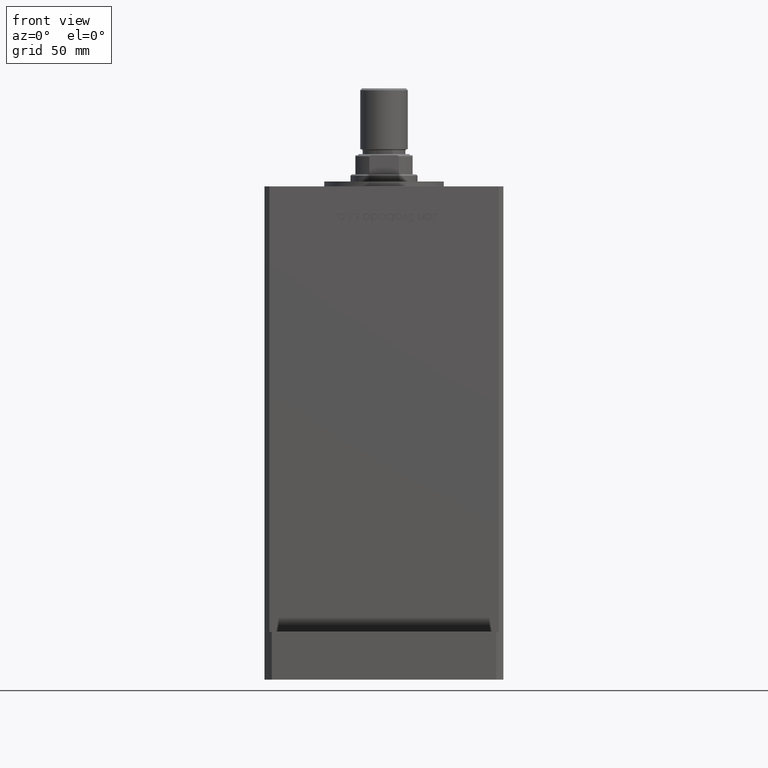
[diagram: clean part render]
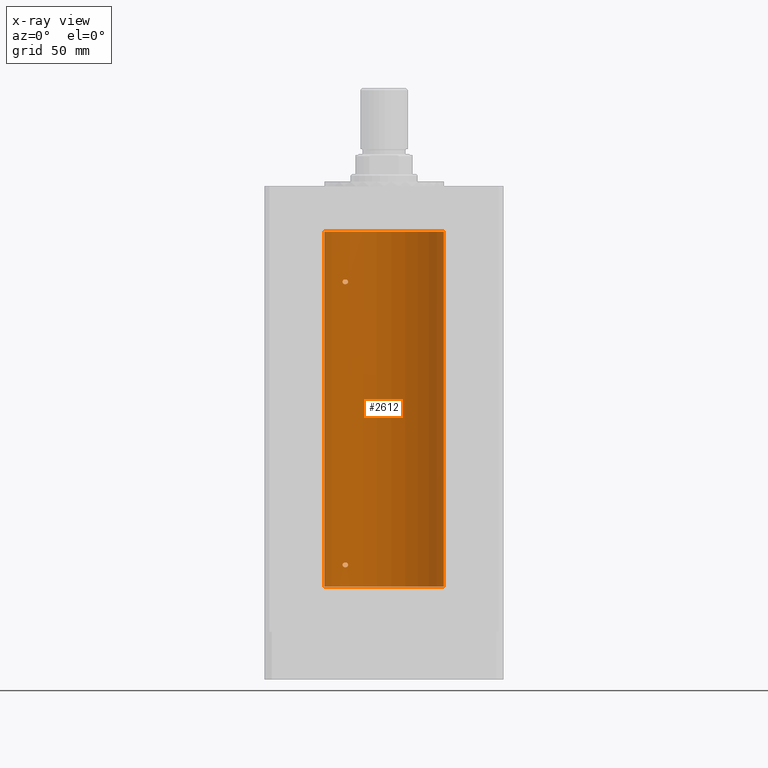
[diagram: x-ray — body ghosted, one internal face saturated and labeled with its STEP entity id]
A machine part, front view, then the same camera in x-ray: the body is ghosted and one INTERNAL B-rep face — a face not visible from any outside direction — is saturated and labeled: STEP entity #2612.
In plain terms, the highlighted cylindrical surface (partial cylindrical patch) has radius 25 mm, axis along (-0, -0, -1).
Its self-contained STEP definition (entity closure, byte-faithful):
#77 = CARTESIAN_POINT ( 'NONE',  ( -17.05007833789893112, 18.28384926940286093, 9.701373999012139038 ) ) ;
#343 = CARTESIAN_POINT ( 'NONE',  ( -15.34624284195506583, 19.73614442075939479, 9.687618531851304837 ) ) ;
#455 = CARTESIAN_POINT ( 'NONE',  ( -15.58164749401206528, 19.55082150006400354, 126.6566780726851533 ) ) ;
#612 = CARTESIAN_POINT ( 'NONE',  ( -15.00000000000018829, 20.00000000000001776, 9.084038803624167713 ) ) ;
#718 = CARTESIAN_POINT ( 'NONE',  ( -17.15234217094416280, 18.18812579706687416, 126.8965730437750778 ) ) ;
#986 = CARTESIAN_POINT ( 'NONE',  ( -15.23538646979301703, 19.82157806413529855, 126.9119998952827331 ) ) ;
#1133 = VERTEX_POINT ( 'NONE', #40102 ) ;
#1250 = CARTESIAN_POINT ( 'NONE',  ( -17.34935157289747565, 18.00000000000001421, 127.3289983604258282 ) ) ;
#2176 = CARTESIAN_POINT ( 'NONE',  ( -15.34666241858319680, 19.73581294411415143, 8.312122460537588964 ) ) ;
#2447 = CARTESIAN_POINT ( 'NONE',  ( -17.34935157289746854, 18.00000000000001066, 9.000000000000000000 ) ) ;
#2503 = EDGE_CURVE ( 'NONE', #25512, #37214, #52134, .T. ) ;
#2612 = ADVANCED_FACE ( 'NONE', ( #53629, #8176, #24877 ), #41582, .F. ) ;
#2718 = CARTESIAN_POINT ( 'NONE',  ( -15.00000000000018829, 20.00000000000002487, 8.915947458602436981 ) ) ;
#3735 = VERTEX_POINT ( 'NONE', #11087 ) ;
#3752 = CARTESIAN_POINT ( 'NONE',  ( -17.19010376497221060, 18.15221652163110377, 128.0356701235680248 ) ) ;
#3893 = EDGE_CURVE ( 'NONE', #18986, #3735, #52445, .T. ) ;
#4016 = CARTESIAN_POINT ( 'NONE',  ( -15.00000000000020250, 20.00000000000001066, 127.5840388036241535 ) ) ;
#4052 = CARTESIAN_POINT ( 'NONE',  ( 0.000000000000000000, 0.000000000000000000, 148.5000000000000000 ) ) ;
#4163 = CARTESIAN_POINT ( 'NONE',  ( -15.95796937689561013, 19.24499537862566712, 9.975773099652194276 ) ) ;
#4531 = CARTESIAN_POINT ( 'NONE',  ( -16.34293146994562207, 18.91921593628401155, 126.4973425906726590 ) ) ;
#4970 = CARTESIAN_POINT ( 'NONE',  ( -15.01476641895661679, 19.98894406010708380, 9.168794563401341691 ) ) ;
#5923 = CARTESIAN_POINT ( 'NONE',  ( -17.34935157289746854, 18.00000000000001066, 9.000000000000000000 ) ) ;
#6828 = CARTESIAN_POINT ( 'NONE',  ( -17.34935157289747210, 18.00000000000001421, 8.828998360425805103 ) ) ;
#7874 = CARTESIAN_POINT ( 'NONE',  ( -15.06763582406798285, 19.94912143246364877, 127.8250699387717191 ) ) ;
#8176 = FACE_BOUND ( 'NONE', #34460, .T. ) ;
#8670 = CARTESIAN_POINT ( 'NONE',  ( -17.05249165747629903, 18.28208333366427496, 126.7922192200365288 ) ) ;
#8821 = CARTESIAN_POINT ( 'NONE',  ( -14.99999999999999112, 20.00000000000001066, 9.000000000000000000 ) ) ;
#9577 = CARTESIAN_POINT ( 'NONE',  ( -25.00000000000000000, 0.000000000000000000, 148.5000000000000000 ) ) ;
#9617 = AXIS2_PLACEMENT_3D ( 'NONE', #47186, #13225, #9676 ) ;
#9676 = DIRECTION ( 'NONE',  ( 1.000000000000000000, 0.000000000000000000, 0.000000000000000000 ) ) ;
#10105 = ORIENTED_EDGE ( 'NONE', *, *, #26871, .F. ) ;
#10404 = CARTESIAN_POINT ( 'NONE',  ( -16.46844752485334240, 18.81003400474346776, 8.011544319038943485 ) ) ;
#10940 = CARTESIAN_POINT ( 'NONE',  ( -15.01482636753733502, 19.98889854010116096, 8.831202661007701238 ) ) ;
#11087 = CARTESIAN_POINT ( 'NONE',  ( -25.00000000000000000, 0.000000000000000000, 0.000000000000000000 ) ) ;
#11445 = CARTESIAN_POINT ( 'NONE',  ( -15.34624284195506050, 19.73614442075939834, 128.1876185318513137 ) ) ;
#12179 = AXIS2_PLACEMENT_3D ( 'NONE', #4052, #29255, #25150 ) ;
#13040 = CARTESIAN_POINT ( 'NONE',  ( -15.34666241858321989, 19.73581294411413722, 126.8121224605376085 ) ) ;
#13195 = CARTESIAN_POINT ( 'NONE',  ( -16.08745393861402917, 19.13692152169249994, 9.996501509986932987 ) ) ;
#13225 = DIRECTION ( 'NONE',  ( -0.000000000000000000, 0.000000000000000000, 1.000000000000000000 ) ) ;
#13301 = CARTESIAN_POINT ( 'NONE',  ( -15.10490010356608259, 19.92096840819818482, 127.1037666713225036 ) ) ;
#13576 = CARTESIAN_POINT ( 'NONE',  ( -17.30269557861148400, 18.04515136187495727, 127.1660420817559185 ) ) ;
#13742 = CARTESIAN_POINT ( 'NONE',  ( -16.99843849356148695, 18.33190197607054372, 9.746833514575657276 ) ) ;
#13845 = CARTESIAN_POINT ( 'NONE',  ( -15.70664578139657408, 19.45064696206087618, 126.6005795994920788 ) ) ;
#14172 = VERTEX_POINT ( 'NONE', #41447 ) ;
#14625 = ORIENTED_EDGE ( 'NONE', *, *, #29635, .T. ) ;
#15297 = CARTESIAN_POINT ( 'NONE',  ( -14.99999999999999112, 20.00000000000001066, 9.000000000000000000 ) ) ;
#15302 = CARTESIAN_POINT ( 'NONE',  ( -15.23538646979299038, 19.82157806413531631, 8.411999895282743722 ) ) ;
#15495 = EDGE_CURVE ( 'NONE', #29649, #3735, #48476, .T. ) ;
#15811 = CARTESIAN_POINT ( 'NONE',  ( -17.05007833789892757, 18.28384926940287869, 128.2013739990121906 ) ) ;
#15824 = ORIENTED_EDGE ( 'NONE', *, *, #23783, .F. ) ;
#16791 = LINE ( 'NONE', #20904, #41280 ) ;
#16831 = ORIENTED_EDGE ( 'NONE', *, *, #35658, .F. ) ;
#17037 = CARTESIAN_POINT ( 'NONE',  ( -17.30163983552689899, 18.04615713653367592, 9.336007472727789747 ) ) ;
#17305 = CARTESIAN_POINT ( 'NONE',  ( -15.23594348686699895, 19.82115246225716376, 9.588721932685826843 ) ) ;
#17416 = CARTESIAN_POINT ( 'NONE',  ( -15.01482636753733857, 19.98889854010115386, 127.3312026610077510 ) ) ;
#18986 = VERTEX_POINT ( 'NONE', #49377 ) ;
#19151 = CARTESIAN_POINT ( 'NONE',  ( -14.99999999999999112, 20.00000000000001066, 9.000000000000000000 ) ) ;
#19687 = CARTESIAN_POINT ( 'NONE',  ( -17.05249165747629547, 18.28208333366428207, 8.292219220036512795 ) ) ;
#20189 = CARTESIAN_POINT ( 'NONE',  ( -15.70535969280552990, 19.45169171760802485, 128.3989607721124742 ) ) ;
#20502 = VECTOR ( 'NONE', #47941, 1000.000000000000000 ) ;
#20741 = CARTESIAN_POINT ( 'NONE',  ( -15.01476641895662745, 19.98894406010706959, 127.6687945634013062 ) ) ;
#20896 = ORIENTED_EDGE ( 'NONE', *, *, #3893, .F. ) ;
#20904 = CARTESIAN_POINT ( 'NONE',  ( 25.00000000000000000, 3.061616997868383043E-15, 148.5000000000000000 ) ) ;
#21621 = DIRECTION ( 'NONE',  ( -0.000000000000000000, 0.000000000000000000, 1.000000000000000000 ) ) ;
#21686 = CARTESIAN_POINT ( 'NONE',  ( -17.34935157289747210, 18.00000000000001421, 9.170973690606336604 ) ) ;
#22068 = CARTESIAN_POINT ( 'NONE',  ( -15.06722189748649754, 19.94943357555938235, 127.1759803248788643 ) ) ;
#22341 = CARTESIAN_POINT ( 'NONE',  ( -16.08757264251640251, 19.13682698743027188, 126.5034427658481775 ) ) ;
#22726 = CARTESIAN_POINT ( 'NONE',  ( -16.71492528194912808, 18.59135325782692760, 8.080141558342090136 ) ) ;
#22999 = CARTESIAN_POINT ( 'NONE',  ( -17.30269557861148044, 18.04515136187495727, 8.666042081755902515 ) ) ;
#23544 = CARTESIAN_POINT ( 'NONE',  ( -17.15234217094416636, 18.18812579706687771, 8.396573043775076073 ) ) ;
#23783 = EDGE_CURVE ( 'NONE', #1133, #43336, #30539, .T. ) ;
#24877 = FACE_BOUND ( 'NONE', #45117, .T. ) ;
#25150 = DIRECTION ( 'NONE',  ( -1.000000000000000000, 0.000000000000000000, 0.000000000000000000 ) ) ;
#25305 = ORIENTED_EDGE ( 'NONE', *, *, #2503, .F. ) ;
#25512 = VERTEX_POINT ( 'NONE', #5923 ) ;
#25527 = CARTESIAN_POINT ( 'NONE',  ( -16.46913072925703148, 18.81168496547890712, 10.00577755881140618 ) ) ;
#25647 = ORIENTED_EDGE ( 'NONE', *, *, #43113, .F. ) ;
#26871 = EDGE_CURVE ( 'NONE', #14172, #18986, #16791, .T. ) ;
#27364 = AXIS2_PLACEMENT_3D ( 'NONE', #34212, #21621, #37775 ) ;
#28420 = CARTESIAN_POINT ( 'NONE',  ( -16.72476285461318923, 18.58415905903082788, 128.4449447607957495 ) ) ;
#28694 = CARTESIAN_POINT ( 'NONE',  ( -15.23594348686699007, 19.82115246225715310, 128.0887219326858428 ) ) ;
#29218 = CARTESIAN_POINT ( 'NONE',  ( -15.10490800566735814, 19.92096305044240268, 127.8962931740442173 ) ) ;
#29255 = DIRECTION ( 'NONE',  ( -0.000000000000000000, -0.000000000000000000, -1.000000000000000000 ) ) ;
#29481 = B_SPLINE_CURVE_WITH_KNOTS ( 'NONE', 3,
 ( #51366, #1250, #13576, #718, #8670, #42598, #50551, #30566, #4531, #22341, #38758, #13845, #455, #13040, #986, #13301, #22068, #17416, #34377, #50285 ),
 .UNSPECIFIED., .F., .F.,
 ( 4, 2, 2, 2, 2, 2, 2, 2, 2, 4 ),
 ( 0.000000000000000000, 0.0005040871078733106126, 0.001008174215746621225, 0.001512261323619931838, 0.002016348431493242450, 0.002520435539366552846, 0.003024522647239863676, 0.003528609755113174505, 0.003780653309049860928, 0.004032696862986547351 ),
 .UNSPECIFIED. ) ;
#29635 = EDGE_CURVE ( 'NONE', #14172, #29649, #52724, .T. ) ;
#29649 = VERTEX_POINT ( 'NONE', #9577 ) ;
#29659 = DIRECTION ( 'NONE',  ( -0.000000000000000000, -0.000000000000000000, -1.000000000000000000 ) ) ;
#30456 = CARTESIAN_POINT ( 'NONE',  ( -15.58230678163760530, 19.55030131031898577, 9.843739486702938635 ) ) ;
#30539 = B_SPLINE_CURVE_WITH_KNOTS ( 'NONE', 3,
 ( #50026, #4016, #20741, #7874, #29218, #28694, #11445, #54141, #20189, #36890, #36630, #53331, #28420, #41818, #15811, #37162, #3752, #32524, #53595, #49766 ),
 .UNSPECIFIED., .F., .F.,
 ( 4, 2, 2, 2, 2, 2, 2, 2, 2, 4 ),
 ( 0.004032696862986547351, 0.004284699222246883543, 0.004536701581507219735, 0.005040706300027958907, 0.005544711018548698946, 0.006048715737069438117, 0.007056725174110931205, 0.007308727533371293418, 0.007560729892631655631, 0.008064734611152384394 ),
 .UNSPECIFIED. ) ;
#30566 = CARTESIAN_POINT ( 'NONE',  ( -16.46844752485335661, 18.81003400474345710, 126.5115443190389328 ) ) ;
#31371 = ORIENTED_EDGE ( 'NONE', *, *, #15495, .T. ) ;
#32524 = CARTESIAN_POINT ( 'NONE',  ( -17.30163983552689189, 18.04615713653366882, 127.8360074727278004 ) ) ;
#32981 = CARTESIAN_POINT ( 'NONE',  ( -17.34935157289746854, 18.00000000000000711, 127.5000000000000000 ) ) ;
#34006 = CARTESIAN_POINT ( 'NONE',  ( -15.06763582406798463, 19.94912143246364522, 9.325069938771754607 ) ) ;
#34212 = CARTESIAN_POINT ( 'NONE',  ( 0.000000000000000000, 0.000000000000000000, 148.5000000000000000 ) ) ;
#34377 = CARTESIAN_POINT ( 'NONE',  ( -15.00000000000020250, 20.00000000000001421, 127.4159474586024317 ) ) ;
#34460 = EDGE_LOOP ( 'NONE', ( #25305, #16831 ) ) ;
#34543 = CARTESIAN_POINT ( 'NONE',  ( -17.19010376497221060, 18.15221652163110377, 9.535670123568005252 ) ) ;
#35588 = CARTESIAN_POINT ( 'NONE',  ( -16.08757264251639896, 19.13682698743027544, 8.003442765848195251 ) ) ;
#35658 = EDGE_CURVE ( 'NONE', #37214, #25512, #47319, .T. ) ;
#35857 = CARTESIAN_POINT ( 'NONE',  ( -15.06722189748649399, 19.94943357555938590, 8.675980324878873162 ) ) ;
#36630 = CARTESIAN_POINT ( 'NONE',  ( -16.08745393861403983, 19.13692152169250349, 128.4965015099869561 ) ) ;
#36890 = CARTESIAN_POINT ( 'NONE',  ( -15.95796937689560657, 19.24499537862566001, 128.4757730996522014 ) ) ;
#37162 = CARTESIAN_POINT ( 'NONE',  ( -17.14593038898728494, 18.19399314418736324, 128.0959448831965233 ) ) ;
#37214 = VERTEX_POINT ( 'NONE', #15297 ) ;
#37775 = DIRECTION ( 'NONE',  ( 1.000000000000000000, 0.000000000000000000, 0.000000000000000000 ) ) ;
#38758 = CARTESIAN_POINT ( 'NONE',  ( -15.95808436639367400, 19.24489366819294034, 126.5242608788495176 ) ) ;
#39331 = EDGE_LOOP ( 'NONE', ( #10105, #14625, #31371, #20896 ) ) ;
#39689 = CARTESIAN_POINT ( 'NONE',  ( -15.70664578139656342, 19.45064696206088684, 8.100579599492093053 ) ) ;
#40102 = CARTESIAN_POINT ( 'NONE',  ( -15.00000000000000000, 20.00000000000000000, 127.5000000000000000 ) ) ;
#40495 = CARTESIAN_POINT ( 'NONE',  ( -16.34293146994560786, 18.91921593628401865, 7.997342590672627871 ) ) ;
#41280 = VECTOR ( 'NONE', #29659, 1000.000000000000000 ) ;
#41447 = CARTESIAN_POINT ( 'NONE',  ( 25.00000000000000000, 3.061616997868383043E-15, 148.5000000000000000 ) ) ;
#41582 = CYLINDRICAL_SURFACE ( 'NONE', #12179, 25.00000000000000000 ) ;
#41818 = CARTESIAN_POINT ( 'NONE',  ( -16.99843849356149761, 18.33190197607053662, 128.2468335145756271 ) ) ;
#42492 = CARTESIAN_POINT ( 'NONE',  ( -17.14593038898729560, 18.19399314418734548, 9.595944883196500186 ) ) ;
#42598 = CARTESIAN_POINT ( 'NONE',  ( -16.83415218046522099, 18.48332662461715614, 126.6343172662812435 ) ) ;
#43113 = EDGE_CURVE ( 'NONE', #43336, #1133, #29481, .T. ) ;
#43336 = VERTEX_POINT ( 'NONE', #32981 ) ;
#43792 = CARTESIAN_POINT ( 'NONE',  ( -15.58164749401204219, 19.55082150006402841, 8.156678072685169312 ) ) ;
#44339 = CARTESIAN_POINT ( 'NONE',  ( -15.10490010356606305, 19.92096840819820613, 8.603766671322505388 ) ) ;
#45117 = EDGE_LOOP ( 'NONE', ( #25647, #15824 ) ) ;
#46337 = CARTESIAN_POINT ( 'NONE',  ( -17.34935157289746854, 18.00000000000001066, 9.000000000000000000 ) ) ;
#46605 = CARTESIAN_POINT ( 'NONE',  ( -16.72476285461318568, 18.58415905903082788, 9.944944760795701555 ) ) ;
#47186 = CARTESIAN_POINT ( 'NONE',  ( 0.000000000000000000, 0.000000000000000000, 0.000000000000000000 ) ) ;
#47319 = B_SPLINE_CURVE_WITH_KNOTS ( 'NONE', 3,
 ( #8821, #612, #4970, #34006, #51257, #17305, #343, #30456, #50703, #4163, #13195, #25527, #46605, #13742, #77, #42492, #34543, #17037, #21686, #46337 ),
 .UNSPECIFIED., .F., .F.,
 ( 4, 2, 2, 2, 2, 2, 2, 2, 2, 4 ),
 ( 0.004032696862986573372, 0.004284699222246939054, 0.004536701581507305604, 0.005040706300028038704, 0.005544711018548771804, 0.006048715737069505771, 0.007056725174110978910, 0.007308727533371345460, 0.007560729892631712010, 0.008064734611152450314 ),
 .UNSPECIFIED. ) ;
#47918 = CARTESIAN_POINT ( 'NONE',  ( -16.83415218046522455, 18.48332662461717391, 8.134317266281218650 ) ) ;
#47941 = DIRECTION ( 'NONE',  ( -0.000000000000000000, -0.000000000000000000, -1.000000000000000000 ) ) ;
#48476 = LINE ( 'NONE', #52577, #20502 ) ;
#49377 = CARTESIAN_POINT ( 'NONE',  ( 25.00000000000000000, 3.061616997868383043E-15, 0.000000000000000000 ) ) ;
#49766 = CARTESIAN_POINT ( 'NONE',  ( -17.34935157289746854, 18.00000000000000711, 127.5000000000000000 ) ) ;
#50026 = CARTESIAN_POINT ( 'NONE',  ( -15.00000000000000000, 20.00000000000000000, 127.5000000000000000 ) ) ;
#50285 = CARTESIAN_POINT ( 'NONE',  ( -15.00000000000000000, 20.00000000000000000, 127.5000000000000000 ) ) ;
#50551 = CARTESIAN_POINT ( 'NONE',  ( -16.71492528194913518, 18.59135325782691694, 126.5801415583421061 ) ) ;
#50703 = CARTESIAN_POINT ( 'NONE',  ( -15.70535969280553346, 19.45169171760802840, 9.898960772112497253 ) ) ;
#51257 = CARTESIAN_POINT ( 'NONE',  ( -15.10490800566735814, 19.92096305044240978, 9.396293174044259899 ) ) ;
#51366 = CARTESIAN_POINT ( 'NONE',  ( -17.34935157289746854, 18.00000000000000711, 127.5000000000000000 ) ) ;
#52134 = B_SPLINE_CURVE_WITH_KNOTS ( 'NONE', 3,
 ( #2447, #6828, #22999, #23544, #19687, #47918, #22726, #10404, #40495, #35588, #52823, #39689, #43792, #2176, #15302, #44339, #35857, #10940, #2718, #19151 ),
 .UNSPECIFIED., .F., .F.,
 ( 4, 2, 2, 2, 2, 2, 2, 2, 2, 4 ),
 ( 0.000000000000000000, 0.0005040871078733219967, 0.001008174215746643993, 0.001512261323619965882, 0.002016348431493287987, 0.002520435539366610092, 0.003024522647239931764, 0.003528609755113253869, 0.003780653309049913837, 0.004032696862986573372 ),
 .UNSPECIFIED. ) ;
#52445 = CIRCLE ( 'NONE', #9617, 25.00000000000000000 ) ;
#52577 = CARTESIAN_POINT ( 'NONE',  ( -25.00000000000000000, 0.000000000000000000, 148.5000000000000000 ) ) ;
#52724 = CIRCLE ( 'NONE', #27364, 25.00000000000000000 ) ;
#52823 = CARTESIAN_POINT ( 'NONE',  ( -15.95808436639366334, 19.24489366819295100, 8.024260878849517553 ) ) ;
#53331 = CARTESIAN_POINT ( 'NONE',  ( -16.46913072925703858, 18.81168496547890712, 128.5057775588113884 ) ) ;
#53595 = CARTESIAN_POINT ( 'NONE',  ( -17.34935157289746854, 18.00000000000000711, 127.6709736906063739 ) ) ;
#53629 = FACE_OUTER_BOUND ( 'NONE', #39331, .T. ) ;
#54141 = CARTESIAN_POINT ( 'NONE',  ( -15.58230678163760352, 19.55030131031897511, 128.3437394867029013 ) ) ;